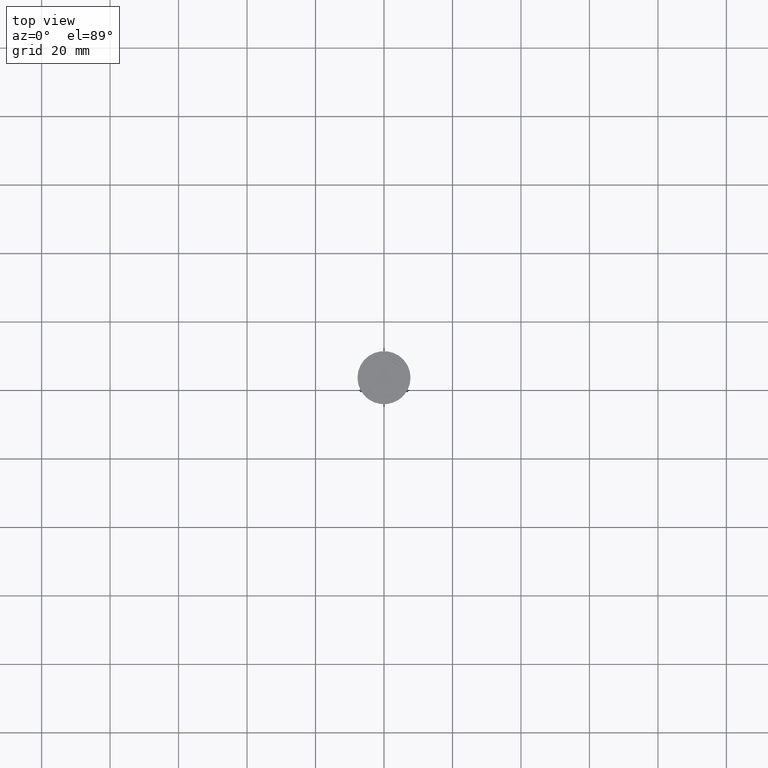
[diagram: clean part render]
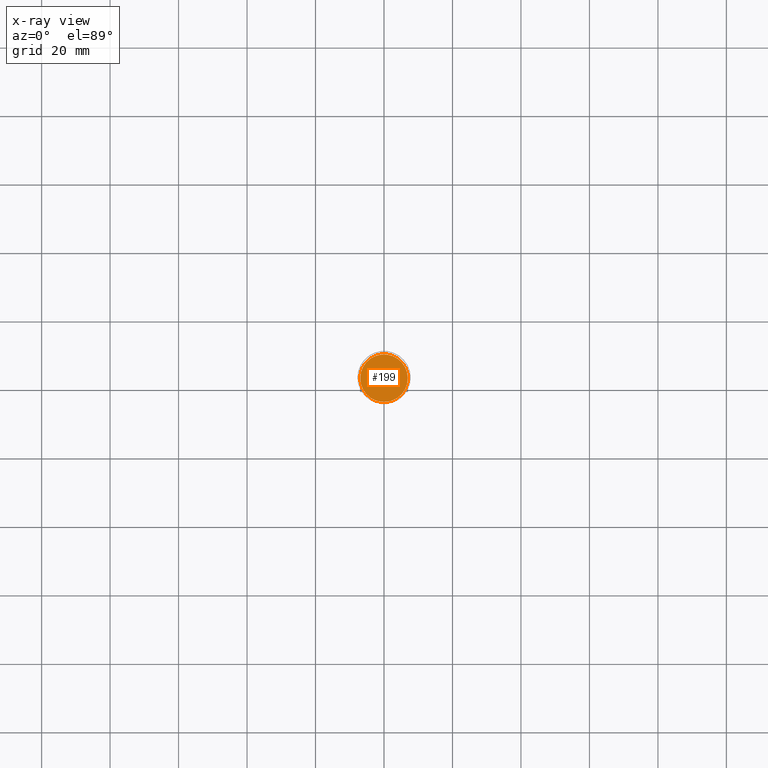
[diagram: x-ray — body ghosted, one internal face saturated and labeled with its STEP entity id]
A machine part, top view, then the same camera in x-ray: the body is ghosted and one INTERNAL B-rep face — a face not visible from any outside direction — is saturated and labeled: STEP entity #199.
In plain terms, the highlighted planar face has unit normal (0, 0, -1).
Its self-contained STEP definition (entity closure, byte-faithful):
#32 = AXIS2_PLACEMENT_3D ( 'NONE', #1571, #692, #1977 ) ;
#152 = CIRCLE ( 'NONE', #32, 6.950000000000001066 ) ;
#176 = PLANE ( 'NONE',  #532 ) ;
#179 = DIRECTION ( 'NONE',  ( -0.000000000000000000, -0.000000000000000000, 1.000000000000000000 ) ) ;
#199 = ADVANCED_FACE ( 'NONE', ( #2344 ), #176, .F. ) ;
#320 = VERTEX_POINT ( 'NONE', #1822 ) ;
#472 = CARTESIAN_POINT ( 'NONE',  ( -6.950000000000001066, 0.000000000000000000, -10.50000000000000178 ) ) ;
#519 = EDGE_CURVE ( 'NONE', #320, #1415, #152, .T. ) ;
#532 = AXIS2_PLACEMENT_3D ( 'NONE', #1892, #823, #1223 ) ;
#692 = DIRECTION ( 'NONE',  ( -0.000000000000000000, -0.000000000000000000, 1.000000000000000000 ) ) ;
#823 = DIRECTION ( 'NONE',  ( 0.000000000000000000, 0.000000000000000000, -1.000000000000000000 ) ) ;
#1080 = CARTESIAN_POINT ( 'NONE',  ( 0.000000000000000000, 0.000000000000000000, -10.50000000000000178 ) ) ;
#1131 = EDGE_CURVE ( 'NONE', #1415, #320, #1656, .T. ) ;
#1223 = DIRECTION ( 'NONE',  ( -1.000000000000000000, 0.000000000000000000, -0.000000000000000000 ) ) ;
#1415 = VERTEX_POINT ( 'NONE', #472 ) ;
#1571 = CARTESIAN_POINT ( 'NONE',  ( 0.000000000000000000, 0.000000000000000000, -10.50000000000000178 ) ) ;
#1656 = CIRCLE ( 'NONE', #1886, 6.950000000000001066 ) ;
#1822 = CARTESIAN_POINT ( 'NONE',  ( 6.950000000000001066, 8.694992273946209718E-16, -10.50000000000000178 ) ) ;
#1886 = AXIS2_PLACEMENT_3D ( 'NONE', #1080, #179, #2006 ) ;
#1892 = CARTESIAN_POINT ( 'NONE',  ( 0.000000000000000000, 0.000000000000000000, -10.50000000000000178 ) ) ;
#1977 = DIRECTION ( 'NONE',  ( -1.000000000000000000, 0.000000000000000000, 0.000000000000000000 ) ) ;
#2006 = DIRECTION ( 'NONE',  ( -1.000000000000000000, 0.000000000000000000, 0.000000000000000000 ) ) ;
#2104 = EDGE_LOOP ( 'NONE', ( #2175, #2312 ) ) ;
#2175 = ORIENTED_EDGE ( 'NONE', *, *, #1131, .T. ) ;
#2312 = ORIENTED_EDGE ( 'NONE', *, *, #519, .T. ) ;
#2344 = FACE_OUTER_BOUND ( 'NONE', #2104, .T. ) ;